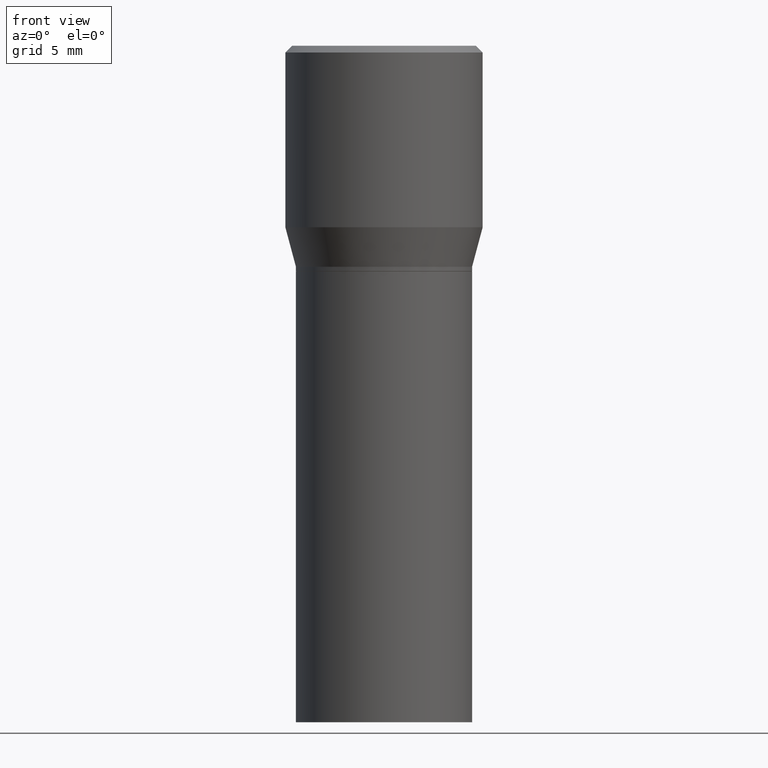
[diagram: clean part render]
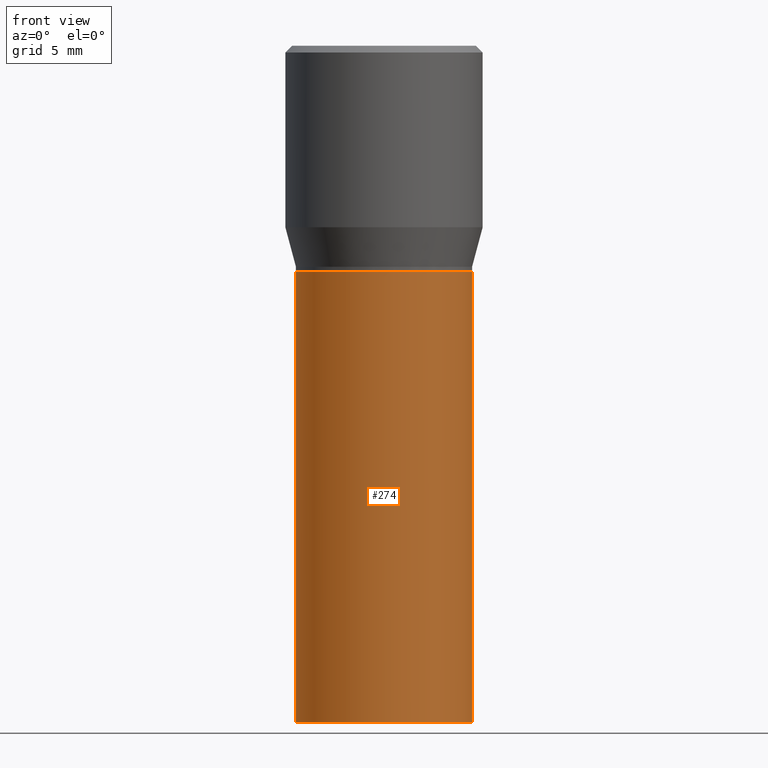
[diagram: same view with one face highlighted and labeled with its STEP entity id]
A machine part, front view. The second image highlights one B-rep face of the part: STEP entity #274.
In plain terms, the highlighted cylindrical surface (partial cylindrical patch) has radius 4.9606 mm, axis along (-0, 0, 1).
Its self-contained STEP definition (entity closure, byte-faithful):
#4 = CARTESIAN_POINT ( 'NONE',  ( -0.1953000000000000014, -2.103791375903670501E-15, -1.500000000000000222 ) ) ;
#31 = CYLINDRICAL_SURFACE ( 'NONE', #215, 0.1953000000000000014 ) ;
#37 = LINE ( 'NONE', #457, #76 ) ;
#38 = ORIENTED_EDGE ( 'NONE', *, *, #413, .F. ) ;
#62 = DIRECTION ( 'NONE',  ( -2.445468806185136597E-29, 3.491481338843145583E-15, 1.000000000000000000 ) ) ;
#63 = DIRECTION ( 'NONE',  ( -2.445468806185136877E-29, 3.491481338843145188E-15, 1.000000000000000000 ) ) ;
#66 = VERTEX_POINT ( 'NONE', #436 ) ;
#70 = VERTEX_POINT ( 'NONE', #75 ) ;
#75 = CARTESIAN_POINT ( 'NONE',  ( -0.1953000000000000014, -2.103791375903670501E-15, -0.5000000000000001110 ) ) ;
#76 = VECTOR ( 'NONE', #188, 39.37007874015748143 ) ;
#97 = FACE_OUTER_BOUND ( 'NONE', #118, .T. ) ;
#103 = DIRECTION ( 'NONE',  ( -2.445468806185136597E-29, 3.491481338843145583E-15, 1.000000000000000000 ) ) ;
#105 = ORIENTED_EDGE ( 'NONE', *, *, #155, .T. ) ;
#118 = EDGE_LOOP ( 'NONE', ( #295, #257, #105, #38 ) ) ;
#146 = CARTESIAN_POINT ( 'NONE',  ( 0.1953000000000000014, -3.109513280373700880E-15, -0.5000000000000001110 ) ) ;
#155 = EDGE_CURVE ( 'NONE', #66, #210, #389, .T. ) ;
#168 = VECTOR ( 'NONE', #63, 39.37007874015748143 ) ;
#175 = EDGE_CURVE ( 'NONE', #350, #66, #270, .T. ) ;
#188 = DIRECTION ( 'NONE',  ( -2.445468806185136877E-29, 3.491481338843145188E-15, 1.000000000000000000 ) ) ;
#200 = AXIS2_PLACEMENT_3D ( 'NONE', #391, #103, #230 ) ;
#210 = VERTEX_POINT ( 'NONE', #146 ) ;
#215 = AXIS2_PLACEMENT_3D ( 'NONE', #387, #62, #218 ) ;
#218 = DIRECTION ( 'NONE',  ( 1.000000000000000000, -6.982962677686265922E-15, 4.876176775795935793E-29 ) ) ;
#230 = DIRECTION ( 'NONE',  ( 1.000000000000000000, -6.982962677686269077E-15, 0.000000000000000000 ) ) ;
#243 = CIRCLE ( 'NONE', #335, 0.1953000000000000014 ) ;
#245 = EDGE_CURVE ( 'NONE', #350, #70, #37, .T. ) ;
#249 = DIRECTION ( 'NONE',  ( 1.000000000000000000, -6.982962677686264344E-15, 0.000000000000000000 ) ) ;
#257 = ORIENTED_EDGE ( 'NONE', *, *, #175, .T. ) ;
#270 = CIRCLE ( 'NONE', #200, 0.1953000000000000014 ) ;
#274 = ADVANCED_FACE ( 'NONE', ( #97 ), #31, .T. ) ;
#291 = CARTESIAN_POINT ( 'NONE',  ( 0.1953000000000000014, -1.363772610952127695E-15, 9.523173243129462177E-30 ) ) ;
#295 = ORIENTED_EDGE ( 'NONE', *, *, #245, .F. ) ;
#305 = CARTESIAN_POINT ( 'NONE',  ( 1.222734403092568719E-29, -1.745740669421573186E-15, -0.5000000000000001110 ) ) ;
#335 = AXIS2_PLACEMENT_3D ( 'NONE', #305, #431, #249 ) ;
#350 = VERTEX_POINT ( 'NONE', #4 ) ;
#387 = CARTESIAN_POINT ( 'NONE',  ( 0.000000000000000000, 0.000000000000000000, 0.000000000000000000 ) ) ;
#389 = LINE ( 'NONE', #291, #168 ) ;
#391 = CARTESIAN_POINT ( 'NONE',  ( 3.668203209277704895E-29, -5.237222008264718177E-15, -1.500000000000000222 ) ) ;
#413 = EDGE_CURVE ( 'NONE', #70, #210, #243, .T. ) ;
#431 = DIRECTION ( 'NONE',  ( -2.445468806185136597E-29, 3.491481338843145583E-15, 1.000000000000000000 ) ) ;
#436 = CARTESIAN_POINT ( 'NONE',  ( 0.1953000000000000014, -6.600994619216846463E-15, -1.500000000000000222 ) ) ;
#457 = CARTESIAN_POINT ( 'NONE',  ( -0.1953000000000000014, 1.387689962939475673E-15, -9.606680231267831797E-30 ) ) ;